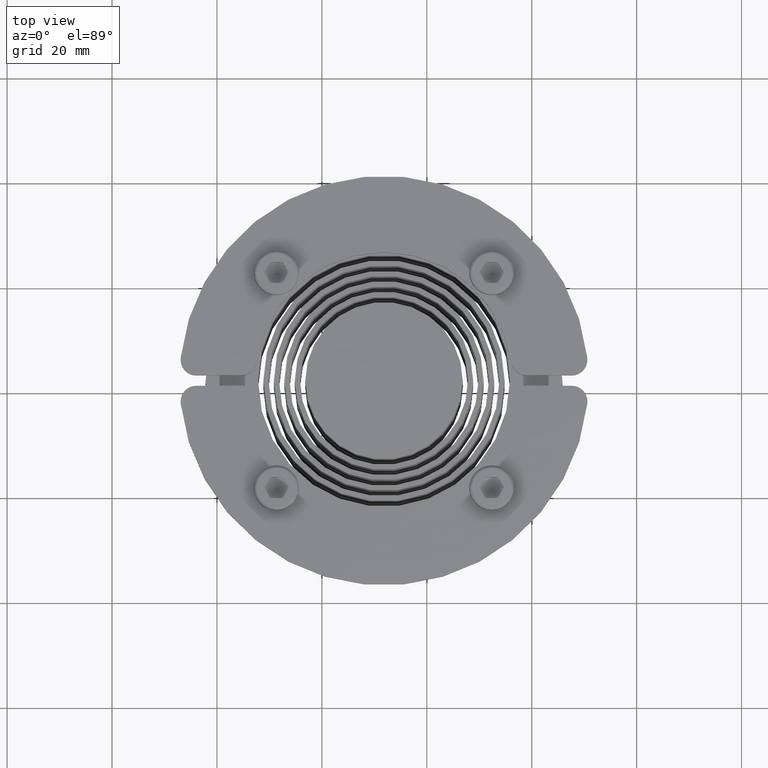
[diagram: clean part render]
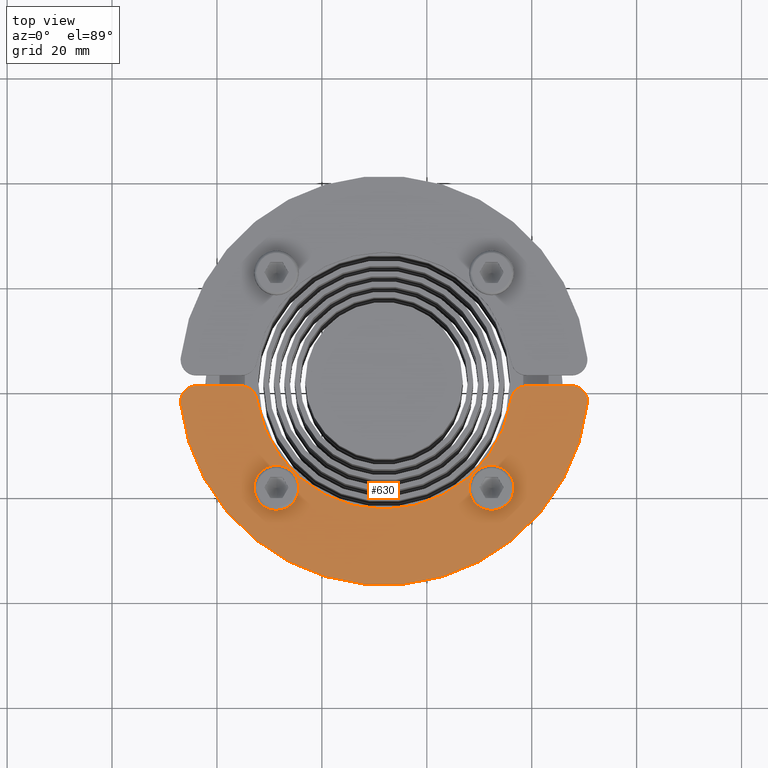
[diagram: same view with one face highlighted and labeled with its STEP entity id]
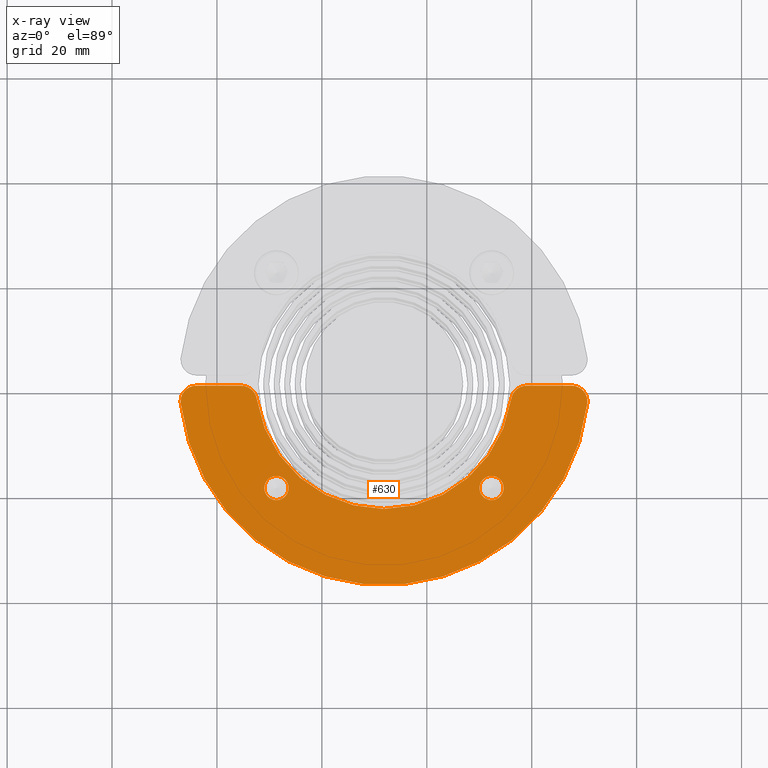
[diagram: x-ray of the same camera — body ghosted, the highlighted face saturated]
A machine part, top view. The second image highlights one B-rep face of the part: STEP entity #630.
The next image is the same camera in x-ray: the body ghosted, the highlighted face saturated — about 0% of this face is hidden behind the body in this view.
In plain terms, the highlighted planar face has unit normal (0, 0, 1).
Its self-contained STEP definition (entity closure, byte-faithful):
#154=CARTESIAN_POINT('',(-18.196696654409948,0.506096654409248,1.750000000000000));
#155=VERTEX_POINT('',#154);
#171=CARTESIAN_POINT('',(-22.815496654409930,0.506096654409248,1.750000000000000));
#172=VERTEX_POINT('',#171);
#179=CARTESIAN_POINT('',(-20.506096654409930,0.506096654409248,1.750000000000000));
#180=DIRECTION('',(0.0,0.0,1.0));
#181=DIRECTION('',(1.0,0.0,0.0));
#182=AXIS2_PLACEMENT_3D('',#179,#180,#181);
#183=CIRCLE('',#182,2.309400000000000);
#184=EDGE_CURVE('',#172,#155,#183,.T.);
#196=CARTESIAN_POINT('',(22.815496654409912,0.506096654409248,1.750000000000000));
#197=VERTEX_POINT('',#196);
#213=CARTESIAN_POINT('',(18.196696654409930,0.506096654409248,1.750000000000000));
#214=VERTEX_POINT('',#213);
#221=CARTESIAN_POINT('',(20.506096654409930,0.506096654409248,1.750000000000000));
#222=DIRECTION('',(0.0,0.0,1.0));
#223=DIRECTION('',(1.0,0.0,0.0));
#224=AXIS2_PLACEMENT_3D('',#221,#222,#223);
#225=CIRCLE('',#224,2.309400000000000);
#226=EDGE_CURVE('',#214,#197,#225,.T.);
#236=CARTESIAN_POINT('',(-38.777087639996125,-16.000000000000455,1.750000000000000));
#237=VERTEX_POINT('',#236);
#246=CARTESIAN_POINT('',(-38.758511609995821,-15.666666666667197,1.750000000000000));
#247=VERTEX_POINT('',#246);
#248=CARTESIAN_POINT('',(-35.777087639996125,-16.000000000000455,1.750000000000000));
#249=DIRECTION('',(0.0,0.0,-1.0));
#250=DIRECTION('',(1.0,0.0,0.0));
#251=AXIS2_PLACEMENT_3D('',#248,#249,#250);
#252=CIRCLE('',#251,3.0);
#253=EDGE_CURVE('',#237,#247,#252,.T.);
#280=CARTESIAN_POINT('',(38.777087639996125,-16.000000000000455,1.750000000000000));
#281=VERTEX_POINT('',#280);
#297=CARTESIAN_POINT('',(38.758511609996731,-15.666666666667538,1.750000000000000));
#298=VERTEX_POINT('',#297);
#305=CARTESIAN_POINT('',(35.777087639996125,-16.000000000000455,1.750000000000000));
#306=DIRECTION('',(0.0,0.0,-1.0));
#307=DIRECTION('',(1.0,0.0,0.0));
#308=AXIS2_PLACEMENT_3D('',#305,#306,#307);
#309=CIRCLE('',#308,3.0);
#310=EDGE_CURVE('',#298,#281,#309,.T.);
#321=CARTESIAN_POINT('',(35.777087639996125,-19.000000000000455,1.750000000000000));
#322=VERTEX_POINT('',#321);
#323=CARTESIAN_POINT('',(35.777087639996125,-16.000000000000455,1.750000000000000));
#324=DIRECTION('',(0.0,0.0,-1.0));
#325=DIRECTION('',(1.0,0.0,0.0));
#326=AXIS2_PLACEMENT_3D('',#323,#324,#325);
#327=CIRCLE('',#326,3.0);
#328=EDGE_CURVE('',#281,#322,#327,.T.);
#353=CARTESIAN_POINT('',(27.207535720826172,-19.000000000000455,1.750000000000000));
#354=VERTEX_POINT('',#353);
#355=CARTESIAN_POINT('',(35.777087639996125,-19.000000000000455,1.750000000000000));
#356=DIRECTION('',(-1.0,0.0,0.0));
#357=VECTOR('',#356,8.569551919169953);
#358=LINE('',#355,#357);
#359=EDGE_CURVE('',#322,#354,#358,.T.);
#384=CARTESIAN_POINT('',(24.239440914917623,-16.436363636364831,1.750000000000000));
#385=VERTEX_POINT('',#384);
#386=CARTESIAN_POINT('',(27.207535720826172,-16.000000000000455,1.750000000000000));
#387=DIRECTION('',(0.0,0.0,-1.0));
#388=DIRECTION('',(1.0,0.0,0.0));
#389=AXIS2_PLACEMENT_3D('',#386,#387,#388);
#390=CIRCLE('',#389,3.0);
#391=EDGE_CURVE('',#354,#385,#390,.T.);
#417=CARTESIAN_POINT('',(-24.239440914916599,-16.436363636364035,1.750000000000000));
#418=VERTEX_POINT('',#417);
#419=CARTESIAN_POINT('',(2.273737E-013,-20.000000000000682,1.750000000000000));
#420=DIRECTION('',(0.0,0.0,1.0));
#421=DIRECTION('',(1.0,0.0,0.0));
#422=AXIS2_PLACEMENT_3D('',#419,#420,#421);
#423=CIRCLE('',#422,24.500000000000000);
#424=EDGE_CURVE('',#385,#418,#423,.T.);
#450=CARTESIAN_POINT('',(-27.207535720824808,-19.000000000000455,1.750000000000000));
#451=VERTEX_POINT('',#450);
#452=CARTESIAN_POINT('',(-27.207535720824808,-16.000000000000455,1.750000000000000));
#453=DIRECTION('',(0.0,0.0,-1.0));
#454=DIRECTION('',(1.0,0.0,0.0));
#455=AXIS2_PLACEMENT_3D('',#452,#453,#454);
#456=CIRCLE('',#455,3.0);
#457=EDGE_CURVE('',#418,#451,#456,.T.);
#483=CARTESIAN_POINT('',(-35.777087639996125,-19.000000000000455,1.750000000000000));
#484=VERTEX_POINT('',#483);
#485=CARTESIAN_POINT('',(-27.207535720824808,-19.000000000000455,1.750000000000000));
#486=DIRECTION('',(-1.0,0.0,0.0));
#487=VECTOR('',#486,8.569551919171317);
#488=LINE('',#485,#487);
#489=EDGE_CURVE('',#451,#484,#488,.T.);
#523=CARTESIAN_POINT('',(-35.777087639996125,-16.000000000000455,1.750000000000000));
#524=DIRECTION('',(0.0,0.0,-1.0));
#525=DIRECTION('',(1.0,0.0,0.0));
#526=AXIS2_PLACEMENT_3D('',#523,#524,#525);
#527=CIRCLE('',#526,3.0);
#528=EDGE_CURVE('',#484,#237,#527,.T.);
#538=CARTESIAN_POINT('',(2.273737E-013,-19.999999999999773,1.750000000000000));
#539=DIRECTION('',(0.0,0.0,-1.0));
#540=DIRECTION('',(1.0,0.0,0.0));
#541=AXIS2_PLACEMENT_3D('',#538,#539,#540);
#542=CIRCLE('',#541,39.000000000000206);
#543=EDGE_CURVE('',#247,#298,#542,.T.);
#563=CARTESIAN_POINT('',(20.506096654409930,0.506096654409248,1.750000000000000));
#564=DIRECTION('',(0.0,0.0,1.0));
#565=DIRECTION('',(1.0,0.0,0.0));
#566=AXIS2_PLACEMENT_3D('',#563,#564,#565);
#567=CIRCLE('',#566,2.309400000000000);
#568=EDGE_CURVE('',#197,#214,#567,.T.);
#587=CARTESIAN_POINT('',(-20.506096654409930,0.506096654409248,1.750000000000000));
#588=DIRECTION('',(0.0,0.0,1.0));
#589=DIRECTION('',(1.0,0.0,0.0));
#590=AXIS2_PLACEMENT_3D('',#587,#588,#589);
#591=CIRCLE('',#590,2.309400000000000);
#592=EDGE_CURVE('',#155,#172,#591,.T.);
#605=CARTESIAN_POINT('',(0.0,-2.111062815735295,1.750000000000000));
#606=DIRECTION('',(0.0,0.0,1.0));
#607=DIRECTION('',(1.0,0.0,0.0));
#608=AXIS2_PLACEMENT_3D('',#605,#606,#607);
#609=PLANE('',#608);
#610=ORIENTED_EDGE('',*,*,#310,.F.);
#611=ORIENTED_EDGE('',*,*,#543,.F.);
#612=ORIENTED_EDGE('',*,*,#253,.F.);
#613=ORIENTED_EDGE('',*,*,#528,.F.);
#614=ORIENTED_EDGE('',*,*,#489,.F.);
#615=ORIENTED_EDGE('',*,*,#457,.F.);
#616=ORIENTED_EDGE('',*,*,#424,.F.);
#617=ORIENTED_EDGE('',*,*,#391,.F.);
#618=ORIENTED_EDGE('',*,*,#359,.F.);
#619=ORIENTED_EDGE('',*,*,#328,.F.);
#620=EDGE_LOOP('',(#610,#611,#612,#613,#614,#615,#616,#617,#618,#619));
#621=FACE_OUTER_BOUND('',#620,.T.);
#622=ORIENTED_EDGE('',*,*,#592,.F.);
#623=ORIENTED_EDGE('',*,*,#184,.F.);
#624=EDGE_LOOP('',(#622,#623));
#625=FACE_BOUND('',#624,.T.);
#626=ORIENTED_EDGE('',*,*,#568,.F.);
#627=ORIENTED_EDGE('',*,*,#226,.F.);
#628=EDGE_LOOP('',(#626,#627));
#629=FACE_BOUND('',#628,.T.);
#630=ADVANCED_FACE('',(#621,#625,#629),#609,.T.);